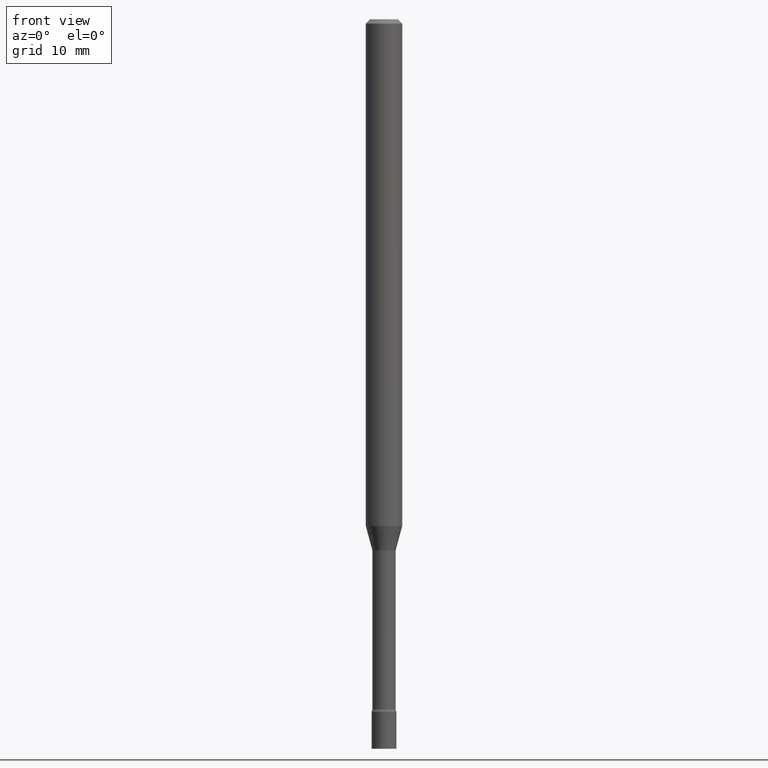
[diagram: clean part render]
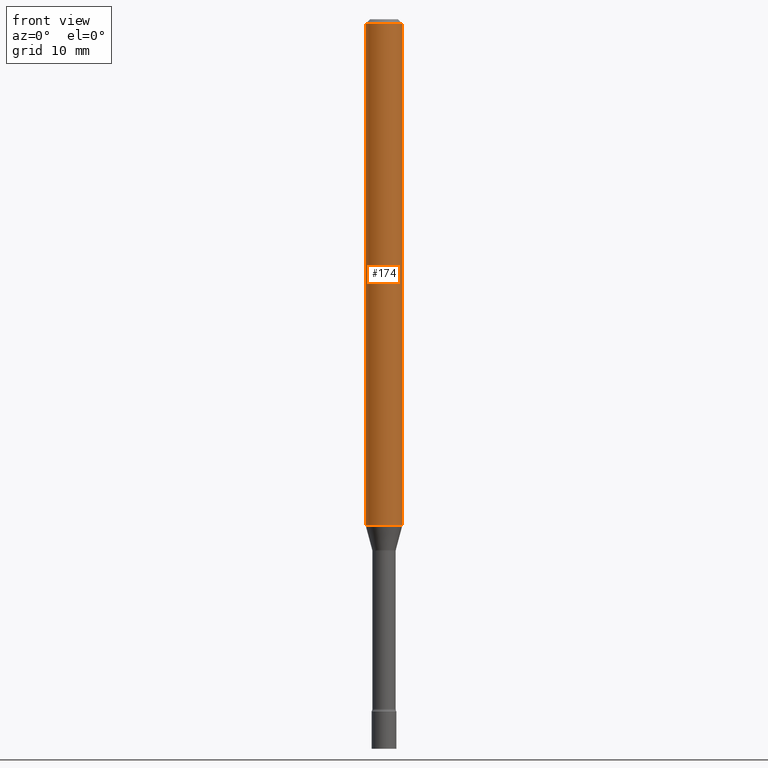
[diagram: same view with one face highlighted and labeled with its STEP entity id]
A machine part, front view. The second image highlights one B-rep face of the part: STEP entity #174.
In plain terms, the highlighted cylindrical surface (edge-blend (fillet) strip) has radius 1.5875 mm, axis along (-0, 0, 1).
Its self-contained STEP definition (entity closure, byte-faithful):
#1 = CIRCLE ( 'NONE', #408, 0.06250000000000000000 ) ;
#8 = DIRECTION ( 'NONE',  ( 1.000000000000000000, -6.982962677686266711E-15, 4.876176775795935793E-29 ) ) ;
#21 = LINE ( 'NONE', #135, #291 ) ;
#38 = DIRECTION ( 'NONE',  ( -2.445468806185136877E-29, 3.491481338843145188E-15, 1.000000000000000000 ) ) ;
#54 = CYLINDRICAL_SURFACE ( 'NONE', #465, 0.06250000000000000000 ) ;
#99 = VERTEX_POINT ( 'NONE', #206 ) ;
#132 = EDGE_CURVE ( 'NONE', #349, #298, #1, .T. ) ;
#135 = CARTESIAN_POINT ( 'NONE',  ( 0.06250000000000000000, -4.364351673553916694E-16, 3.047610484872459871E-30 ) ) ;
#146 = DIRECTION ( 'NONE',  ( 1.000000000000000000, -6.982962677686262766E-15, 0.000000000000000000 ) ) ;
#149 = CARTESIAN_POINT ( 'NONE',  ( 0.06250000000000000000, -6.497096005381978021E-15, -1.735842254289321929 ) ) ;
#166 = LINE ( 'NONE', #401, #387 ) ;
#174 = ADVANCED_FACE ( 'NONE', ( #411 ), #54, .T. ) ;
#184 = CARTESIAN_POINT ( 'NONE',  ( 3.668203209277712094E-31, -5.237222008264728876E-17, -0.01500000000000003067 ) ) ;
#192 = CARTESIAN_POINT ( 'NONE',  ( 0.06250000000000000000, -4.888073874380389458E-16, -0.01500000000000003067 ) ) ;
#195 = ORIENTED_EDGE ( 'NONE', *, *, #504, .F. ) ;
#201 = DIRECTION ( 'NONE',  ( -2.445468806185136597E-29, 3.491481338843145583E-15, 1.000000000000000000 ) ) ;
#206 = CARTESIAN_POINT ( 'NONE',  ( -0.06250000000000000000, -2.612427319204554296E-15, -0.01500000000000003067 ) ) ;
#219 = EDGE_CURVE ( 'NONE', #298, #381, #21, .T. ) ;
#220 = CARTESIAN_POINT ( 'NONE',  ( 0.000000000000000000, 0.000000000000000000, 0.000000000000000000 ) ) ;
#239 = CARTESIAN_POINT ( 'NONE',  ( -0.06250000000000000000, -5.616571628176523735E-15, -1.735842254289321929 ) ) ;
#247 = ORIENTED_EDGE ( 'NONE', *, *, #219, .T. ) ;
#253 = ORIENTED_EDGE ( 'NONE', *, *, #132, .T. ) ;
#288 = EDGE_CURVE ( 'NONE', #99, #381, #448, .T. ) ;
#291 = VECTOR ( 'NONE', #497, 39.37007874015748143 ) ;
#298 = VERTEX_POINT ( 'NONE', #149 ) ;
#304 = DIRECTION ( 'NONE',  ( -2.445468806185136597E-29, 3.491481338843145583E-15, 1.000000000000000000 ) ) ;
#349 = VERTEX_POINT ( 'NONE', #239 ) ;
#355 = AXIS2_PLACEMENT_3D ( 'NONE', #184, #304, #461 ) ;
#374 = DIRECTION ( 'NONE',  ( -2.445468806185136597E-29, 3.491481338843145583E-15, 1.000000000000000000 ) ) ;
#381 = VERTEX_POINT ( 'NONE', #192 ) ;
#384 = ORIENTED_EDGE ( 'NONE', *, *, #288, .F. ) ;
#387 = VECTOR ( 'NONE', #38, 39.37007874015748143 ) ;
#401 = CARTESIAN_POINT ( 'NONE',  ( -0.06250000000000000000, 4.440892098500626162E-16, -3.074334431409316114E-30 ) ) ;
#408 = AXIS2_PLACEMENT_3D ( 'NONE', #434, #201, #146 ) ;
#411 = FACE_OUTER_BOUND ( 'NONE', #503, .T. ) ;
#434 = CARTESIAN_POINT ( 'NONE',  ( 4.244948085322624823E-29, -6.060660838026585563E-15, -1.735842254289321929 ) ) ;
#448 = CIRCLE ( 'NONE', #355, 0.06250000000000000000 ) ;
#461 = DIRECTION ( 'NONE',  ( 1.000000000000000000, -6.982962677686266711E-15, 0.000000000000000000 ) ) ;
#465 = AXIS2_PLACEMENT_3D ( 'NONE', #220, #374, #8 ) ;
#497 = DIRECTION ( 'NONE',  ( -2.445468806185136877E-29, 3.491481338843145188E-15, 1.000000000000000000 ) ) ;
#503 = EDGE_LOOP ( 'NONE', ( #195, #253, #247, #384 ) ) ;
#504 = EDGE_CURVE ( 'NONE', #349, #99, #166, .T. ) ;